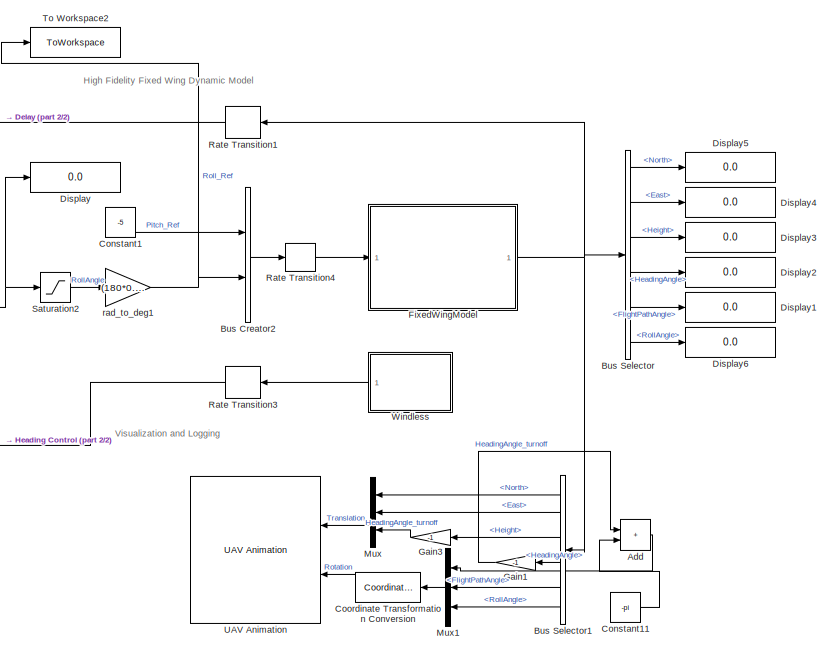
[diagram: root canvas - part 1/2, right side, full height]
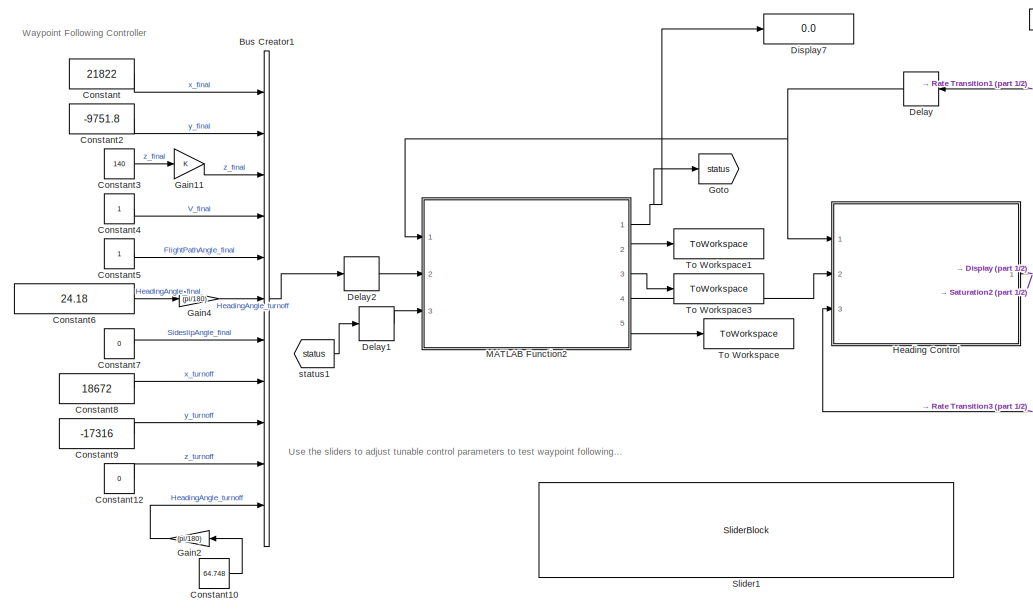
[diagram: root canvas - part 2/2, left side, full height]
MODEL slx_0a9aad748148
KIND model
CONFIG AbsTol = auto
CONFIG EnableMultiTasking = off
CONFIG FixedStep = 0.01
CONFIG MaxStep = auto
CONFIG MinStep = auto
CONFIG RelTol = 1e-3
CONFIG SampleTimeConstraint = Unconstrained
CONFIG SolverName = VariableStepAuto
CONFIG StartTime = 0.0
CONFIG StopTime = 1600
BLOCK [Sum] Add
  IconShape = rectangular
  Ports = [2, 1]
BLOCK [BusCreator] Bus Creator1
  DisplayOption = bar
  InheritFromInputs = on
  Inputs = 11
  OutDataTypeStr = Bus: ConfigureStatus
  Ports = [11, 1]
BLOCK [BusCreator] Bus Creator2
  DisplayOption = bar
  InheritFromInputs = on
  Inputs = 2
  NonVirtualBus = on
  OutDataTypeStr = Bus: FixedWingControlBus2
  Ports = [2, 1]
BLOCK [BusSelector] Bus Selector
  OutputSignals = North,East,Height,HeadingAngle,FlightPathAngle,RollAngle
  Ports = [1, 6]
BLOCK [BusSelector] Bus Selector1
  OutputSignals = North,East,Height,HeadingAngle,FlightPathAngle,RollAngle
  Ports = [1, 6]
BLOCK [Constant] Constant
  Value = 21822
BLOCK [Constant] Constant1
  Value = -5
BLOCK [Constant] Constant10
  Value = 64.748
BLOCK [Constant] Constant11
  Value = -pi
BLOCK [Constant] Constant12
  Value = 0
BLOCK [Constant] Constant2
  Value = -9751.8
  VectorParams1D = off
BLOCK [Constant] Constant3
  Value = 140
BLOCK [Constant] Constant4
BLOCK [Constant] Constant5
BLOCK [Constant] Constant6
  Value = 24.18
BLOCK [Constant] Constant7
  Value = 0
BLOCK [Constant] Constant8
  Value = 18672
BLOCK [Constant] Constant9
  Value = -17316
BLOCK [Reference] Coordinate Transformation Conversion  REF=robotcorelib/Coordinate Transformation Conversion
  Ports = [1, 1]
  SourceBlock = robotcorelib/Coordinate Transformation Conversion
  SourceProductBaseCode = NV,RO,RR,UV
  SourceType = robotics.slcore.internal.block.CoordinateTransformationConversion
BLOCK [Delay] Delay
  DelayLength = 1
  InitialCondition = 0
  InputPortMap = u0
  Ports = [1, 1]
BLOCK [Delay] Delay1
  DelayLength = 1
  InitialCondition = 0
  InputPortMap = u0
  Ports = [1, 1]
BLOCK [Delay] Delay2
  DelayLength = 1
  InitialCondition = 0
  InputPortMap = u0
  Ports = [1, 1]
BLOCK [Display] Display
  Decimation = 1
  Ports = [1]
BLOCK [Display] Display1
  Decimation = 1
  Ports = [1]
BLOCK [Display] Display2
  Decimation = 1
  Ports = [1]
BLOCK [Display] Display3
  Decimation = 1
  Ports = [1]
BLOCK [Display] Display4
  Decimation = 1
  Ports = [1]
BLOCK [Display] Display5
  Decimation = 1
  Ports = [1]
BLOCK [Display] Display6
  Decimation = 1
  Ports = [1]
BLOCK [Display] Display7
  Decimation = 1
  Ports = [1]
BLOCK [ModelReference] FixedWingModel
  ModelNameDialog = FixedWingModel.slx
  ModelReferenceVersion = 3.52
  Ports = [1, 1]
BLOCK [Gain] Gain1
  Gain = -1
BLOCK [Gain] Gain11
BLOCK [Gain] Gain2
  Gain = (pi/180)
BLOCK [Gain] Gain3
  Gain = -1
BLOCK [Gain] Gain4
  Gain = (pi/180)
BLOCK [Goto] Goto
  GotoTag = status
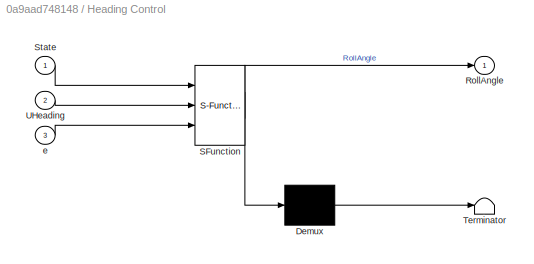
BLOCK [SubSystem] Heading Control
  ErrorFcn = Stateflow.Translate.translate
  PermitHierarchicalResolution = ExplicitOnly
  Ports = [3, 1]
  RequestExecContextInheritance = off
  SFBlockType = MATLAB Function
  TreatAsAtomicUnit = on
BLOCK [Demux] Heading Control/ Demux 
  Outputs = 1
  Ports = [1, 1]
BLOCK [S-Function] Heading Control/ SFunction 
  EnableBusSupport = on
  FunctionName = sf_sfun
  Parameters = PHeadingAngle
  PortCounts = [3 2]
  Ports = [3, 2]
  SFcnIsStateOwnerBlock = off
  SFunctionDeploymentMode = off
  Tag = Stateflow S-Function 2
BLOCK [Terminator] Heading Control/ Terminator 
BLOCK [Outport] Heading Control/RollAngle
  VectorParamsAs1DForOutWhenUnconnected = off
BLOCK [Inport] Heading Control/State
BLOCK [Inport] Heading Control/UHeading
  Port = 2
BLOCK [Inport] Heading Control/e
  Port = 3
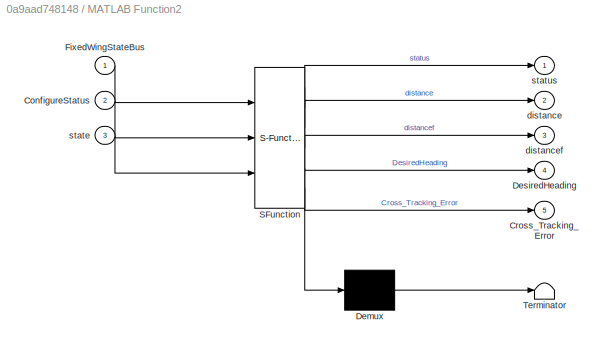
BLOCK [SubSystem] MATLAB Function2
  ErrorFcn = Stateflow.Translate.translate
  PermitHierarchicalResolution = ExplicitOnly
  Ports = [3, 5]
  RequestExecContextInheritance = off
  SFBlockType = MATLAB Function
  TreatAsAtomicUnit = on
BLOCK [Demux] MATLAB Function2/ Demux 
  Outputs = 1
  Ports = [1, 1]
BLOCK [S-Function] MATLAB Function2/ SFunction 
  EnableBusSupport = on
  FunctionName = sf_sfun
  PortCounts = [3 6]
  Ports = [3, 6]
  SFcnIsStateOwnerBlock = off
  SFunctionDeploymentMode = off
  Tag = Stateflow S-Function 1
BLOCK [Terminator] MATLAB Function2/ Terminator 
BLOCK [Inport] MATLAB Function2/ConfigureStatus
  Port = 2
BLOCK [Outport] MATLAB Function2/Cross_Tracking_Error
  Port = 5
BLOCK [Outport] MATLAB Function2/DesiredHeading
  Port = 4
BLOCK [Inport] MATLAB Function2/FixedWingStateBus
BLOCK [Outport] MATLAB Function2/distance
  Port = 2
BLOCK [Outport] MATLAB Function2/distancef
  Port = 3
BLOCK [Inport] MATLAB Function2/state
  Port = 3
BLOCK [Outport] MATLAB Function2/status
BLOCK [Mux] Mux
  DisplayOption = bar
  Inputs = 3
  Ports = [3, 1]
BLOCK [Mux] Mux1
  DisplayOption = bar
  Inputs = 3
  Ports = [3, 1]
BLOCK [RateTransition] Rate Transition1
  OutPortSampleTime = 0.01
BLOCK [RateTransition] Rate Transition3
  OutPortSampleTime = 0.01
BLOCK [RateTransition] Rate Transition4
  OutPortSampleTime = 0.1
BLOCK [Saturate] Saturation2
  LowerLimit = -20*pi/180
  UpperLimit = 20*pi/180
BLOCK [SliderBlock] Slider1
  ScaleMax = 3.8999999999999999
  ScaleMin = 0.39000000000000001
BLOCK [ToWorkspace] To Workspace
  FixptAsFi = on
  MaxDataPoints = inf
  Ports = [1]
  SampleTime = -1
  SaveFormat = Timeseries
  VariableName = Cross_Tracking_Error
BLOCK [ToWorkspace] To Workspace1
  FixptAsFi = on
  MaxDataPoints = inf
  Ports = [1]
  SampleTime = -1
  SaveFormat = Timeseries
  VariableName = distance
BLOCK [ToWorkspace] To Workspace2
  FixptAsFi = on
  MaxDataPoints = inf
  Ports = [1]
  SampleTime = -1
  SaveFormat = Timeseries
  VariableName = Target_Roll
BLOCK [ToWorkspace] To Workspace3
  FixptAsFi = on
  MaxDataPoints = inf
  Ports = [1]
  SampleTime = -1
  SaveFormat = Timeseries
  VariableName = distancef
BLOCK [Reference] UAV Animation  REF=uavutilslib/UAV Animation
  Ports = [2]
  SourceBlock = uavutilslib/UAV Animation
  SourceProductBaseCode = UV
  SourceType = uav.sluav.internal.system.UAVAnimation
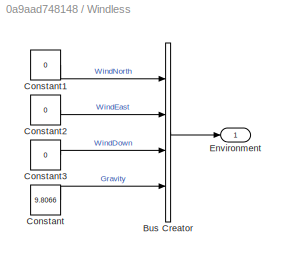
BLOCK [SubSystem] Windless
  Ports = [0, 1]
  RequestExecContextInheritance = off
  VariantControl = NoWind
BLOCK [BusCreator] Windless/Bus Creator
  DisplayOption = bar
  InheritFromInputs = on
  Inputs = 4
  NonVirtualBus = on
  OutDataTypeStr = Bus: FixedWingEnvironmentBus
  Ports = [4, 1]
BLOCK [Constant] Windless/Constant
  Value = 9.8066
BLOCK [Constant] Windless/Constant1
  Value = 0
BLOCK [Constant] Windless/Constant2
  Value = 0
BLOCK [Constant] Windless/Constant3
  Value = 0
BLOCK [Outport] Windless/Environment
  VectorParamsAs1DForOutWhenUnconnected = off
BLOCK [Gain] rad_to_deg1
  Gain = (180*0.93)/pi
BLOCK [From] status1
  GotoTag = status
ANNOTATION (root): Use the sliders to adjust tunable control parameters to test waypoint following behavior.
ANNOTATION (root): High Fidelity Fixed Wing Dynamic Model
ANNOTATION (root): Visualization and Logging
ANNOTATION (root): Waypoint Following Controller
LINE Add:1 -> Mux1:1
LINE Bus Creator1:1 -> Delay2:1
LINE Bus Creator2:1 -> Rate Transition4:1
LINE Bus Selector1:1 -> Mux:1
LINE Bus Selector1:2 -> Mux:2
LINE Bus Selector1:3 -> Gain3:1
LINE Bus Selector1:4 -> Gain1:1
LINE Bus Selector1:5 -> Mux1:2
LINE Bus Selector1:6 -> Mux1:3
LINE Bus Selector:1 -> Display5:1
LINE Bus Selector:2 -> Display4:1
LINE Bus Selector:3 -> Display3:1
LINE Bus Selector:4 -> Display2:1
LINE Bus Selector:5 -> Display1:1
LINE Bus Selector:6 -> Display6:1
LINE Constant10:1 -> Gain2:1
LINE Constant11:1 -> Add:2
LINE Constant12:1 -> Bus Creator1:10
LINE Constant1:1 -> Bus Creator2:1
LINE Constant2:1 -> Bus Creator1:2
LINE Constant3:1 -> Gain11:1
LINE Constant4:1 -> Bus Creator1:4
LINE Constant5:1 -> Bus Creator1:5
LINE Constant6:1 -> Gain4:1
LINE Constant7:1 -> Bus Creator1:7
LINE Constant8:1 -> Bus Creator1:8
LINE Constant9:1 -> Bus Creator1:9
LINE Constant:1 -> Bus Creator1:1
LINE Coordinate Transformation Conversion:1 -> UAV Animation:2
LINE Delay1:1 -> MATLAB Function2:3
LINE Delay2:1 -> MATLAB Function2:2
NET Delay:1 -> Heading Control:1, MATLAB Function2:1
NET FixedWingModel:1 -> Bus Selector1:1, Bus Selector:1, Rate Transition1:1
LINE Gain11:1 -> Bus Creator1:3
LINE Gain1:1 -> Add:1
LINE Gain2:1 -> Bus Creator1:11
LINE Gain3:1 -> Mux:3
LINE Gain4:1 -> Bus Creator1:6
NET Heading Control:1 -> Display:1, Saturation2:1
NET MATLAB Function2:1 -> Display7:1, Goto:1
LINE MATLAB Function2:2 -> To Workspace1:1
LINE MATLAB Function2:3 -> To Workspace3:1
LINE MATLAB Function2:4 -> Heading Control:2
LINE MATLAB Function2:5 -> To Workspace:1
LINE Mux1:1 -> Coordinate Transformation Conversion:1
LINE Mux:1 -> UAV Animation:1
LINE Rate Transition1:1 -> Delay:1
LINE Rate Transition3:1 -> Heading Control:3
LINE Rate Transition4:1 -> FixedWingModel:1
LINE Saturation2:1 -> rad_to_deg1:1
LINE Windless/Bus Creator:1 -> Windless/Environment:1
LINE Windless/Constant1:1 -> Windless/Bus Creator:1
LINE Windless/Constant2:1 -> Windless/Bus Creator:2
LINE Windless/Constant3:1 -> Windless/Bus Creator:3
LINE Windless/Constant:1 -> Windless/Bus Creator:4
LINE Windless:1 -> Rate Transition3:1
NET rad_to_deg1:1 -> Bus Creator2:2, To Workspace2:1
LINE status1:1 -> Delay1:1
note: NET lines group one-source signal fan-out (src -> all destinations, sorted); 1:1 wires keep LINE
CHART MATLAB Function2 states=1 transitions=1
  STATE_LABEL 'eML_blk_kernel()'
  STATE_LABEL 'SCRIPT:\nfunction [status, distance, distancef, DesiredHeading,Cross_Tracking_Error] = Waypoint_Follower_Test(FixedWingStateBus,ConfigureStatus,state)\n\n%% before running this planning algorithm, You are suppose to test trjectory following algorithm at three different status invidsually so that adjust parameters in while condition.\n\n    % initialize some variable to avoid the bug not fully defined o...<+3608ch>'
CHART Heading Control states=1 transitions=1
  STATE_LABEL 'eML_blk_kernel()'
  STATE_LABEL 'SCRIPT:\nfunction RollAngle = fcn(State, UHeading, e, PHeadingAngle)\n    \n    Va = State.AirSpeed;\n    HeadingAngle = State.HeadingAngle;\n    FlightPathAngle = State.FlightPathAngle;\n    \n    YawAngle = HeadingAngle - asin((1/Va)*[e.WindNorth, e.WindEast]*[-sin(HeadingAngle); cos(HeadingAngle)]);\n    b = [cos(HeadingAngle)*cos(FlightPathAngle), sin(HeadingAngle)*cos(FlightPathAngle), -sin(FlightPat...<+279ch>'
CHART  states=0 transitions=0
CHART  states=0 transitions=0
